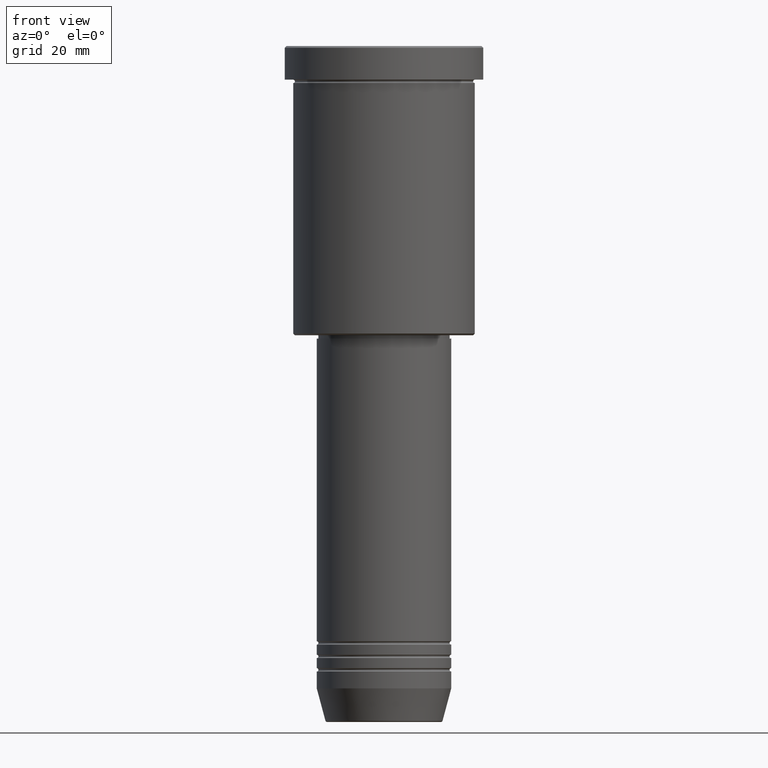
[diagram: clean part render]
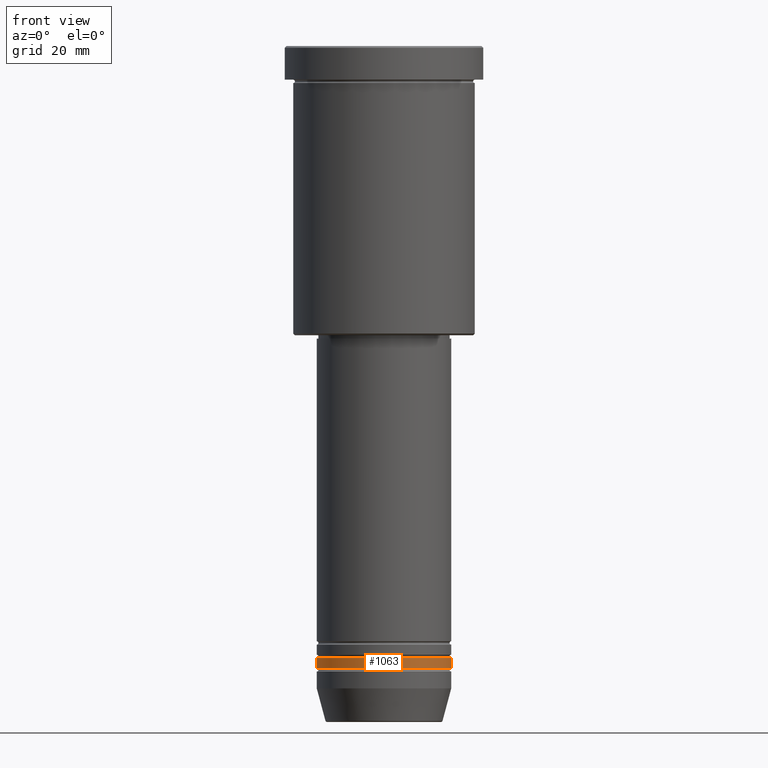
[diagram: same view with one face highlighted and labeled with its STEP entity id]
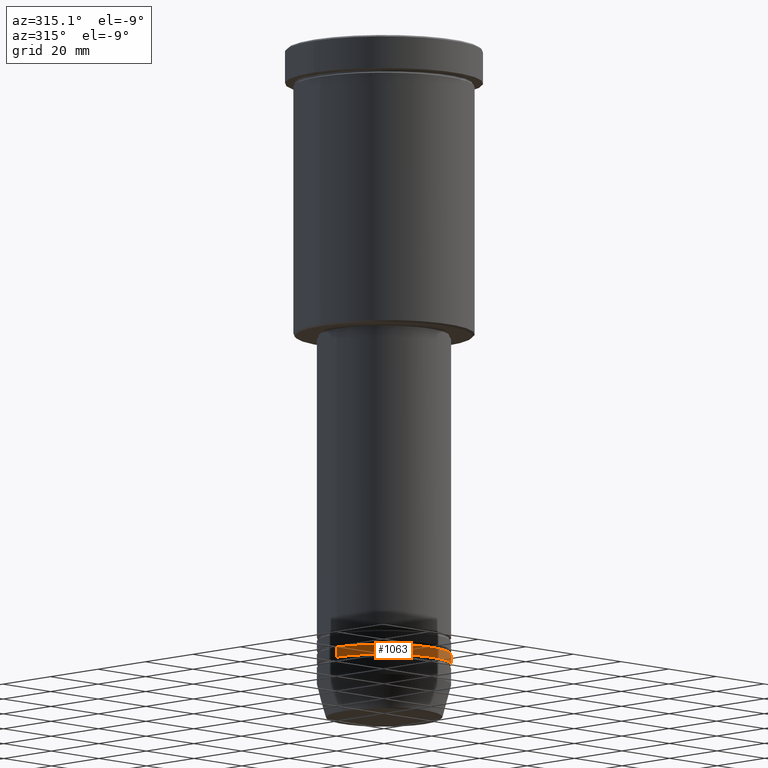
[diagram: same view with one face highlighted and labeled with its STEP entity id]
A machine part, front view. The second image highlights one B-rep face of the part: STEP entity #1063.
A second angle (auxiliary view) of the same face is appended — the face is thin or edge-on in the first view.
In plain terms, the highlighted cylindrical surface (partial cylindrical patch) has radius 20 mm, axis along (-0, -0, 1).
Its self-contained STEP definition (entity closure, byte-faithful):
#39 = DIRECTION ( 'NONE',  ( 1.000000000000000000, 0.000000000000000000, 0.000000000000000000 ) ) ;
#41 = VERTEX_POINT ( 'NONE', #357 ) ;
#56 = AXIS2_PLACEMENT_3D ( 'NONE', #790, #1158, #964 ) ;
#85 = EDGE_CURVE ( 'NONE', #227, #41, #743, .T. ) ;
#127 = DIRECTION ( 'NONE',  ( -0.000000000000000000, -0.000000000000000000, 1.000000000000000000 ) ) ;
#132 = EDGE_CURVE ( 'NONE', #456, #227, #572, .T. ) ;
#174 = VECTOR ( 'NONE', #127, 1000.000000000000000 ) ;
#177 = EDGE_LOOP ( 'NONE', ( #1058, #840, #435, #1052 ) ) ;
#207 = DIRECTION ( 'NONE',  ( -0.000000000000000000, -0.000000000000000000, 1.000000000000000000 ) ) ;
#227 = VERTEX_POINT ( 'NONE', #605 ) ;
#335 = CARTESIAN_POINT ( 'NONE',  ( 20.00000000000000000, 0.000000000000000000, 0.000000000000000000 ) ) ;
#340 = DIRECTION ( 'NONE',  ( 1.000000000000000000, 0.000000000000000000, 0.000000000000000000 ) ) ;
#342 = VECTOR ( 'NONE', #207, 1000.000000000000000 ) ;
#357 = CARTESIAN_POINT ( 'NONE',  ( 20.00000000000000000, 0.000000000000000000, -181.9999999999999147 ) ) ;
#387 = CARTESIAN_POINT ( 'NONE',  ( 0.000000000000000000, 0.000000000000000000, -181.9999999999999147 ) ) ;
#432 = LINE ( 'NONE', #335, #174 ) ;
#435 = ORIENTED_EDGE ( 'NONE', *, *, #733, .T. ) ;
#456 = VERTEX_POINT ( 'NONE', #563 ) ;
#493 = DIRECTION ( 'NONE',  ( -0.000000000000000000, -0.000000000000000000, 1.000000000000000000 ) ) ;
#513 = CYLINDRICAL_SURFACE ( 'NONE', #56, 20.00000000000000000 ) ;
#520 = CIRCLE ( 'NONE', #665, 20.00000000000000000 ) ;
#563 = CARTESIAN_POINT ( 'NONE',  ( -20.00000000000000000, 2.449293598294706513E-15, -184.9999999999998863 ) ) ;
#572 = LINE ( 'NONE', #935, #342 ) ;
#605 = CARTESIAN_POINT ( 'NONE',  ( -20.00000000000000000, 2.449293598294706513E-15, -181.9999999999999147 ) ) ;
#665 = AXIS2_PLACEMENT_3D ( 'NONE', #869, #1160, #340 ) ;
#733 = EDGE_CURVE ( 'NONE', #953, #41, #432, .T. ) ;
#743 = CIRCLE ( 'NONE', #917, 20.00000000000000000 ) ;
#769 = EDGE_CURVE ( 'NONE', #456, #953, #520, .T. ) ;
#790 = CARTESIAN_POINT ( 'NONE',  ( 0.000000000000000000, 0.000000000000000000, 0.000000000000000000 ) ) ;
#840 = ORIENTED_EDGE ( 'NONE', *, *, #769, .T. ) ;
#869 = CARTESIAN_POINT ( 'NONE',  ( 0.000000000000000000, 0.000000000000000000, -184.9999999999998863 ) ) ;
#917 = AXIS2_PLACEMENT_3D ( 'NONE', #387, #493, #39 ) ;
#935 = CARTESIAN_POINT ( 'NONE',  ( -20.00000000000000000, 2.449293598294706513E-15, 0.000000000000000000 ) ) ;
#944 = CARTESIAN_POINT ( 'NONE',  ( 20.00000000000000000, 0.000000000000000000, -184.9999999999998863 ) ) ;
#953 = VERTEX_POINT ( 'NONE', #944 ) ;
#964 = DIRECTION ( 'NONE',  ( 1.000000000000000000, 0.000000000000000000, 0.000000000000000000 ) ) ;
#1052 = ORIENTED_EDGE ( 'NONE', *, *, #85, .F. ) ;
#1053 = FACE_OUTER_BOUND ( 'NONE', #177, .T. ) ;
#1058 = ORIENTED_EDGE ( 'NONE', *, *, #132, .F. ) ;
#1063 = ADVANCED_FACE ( 'NONE', ( #1053 ), #513, .T. ) ;
#1158 = DIRECTION ( 'NONE',  ( -0.000000000000000000, -0.000000000000000000, 1.000000000000000000 ) ) ;
#1160 = DIRECTION ( 'NONE',  ( -0.000000000000000000, -0.000000000000000000, 1.000000000000000000 ) ) ;